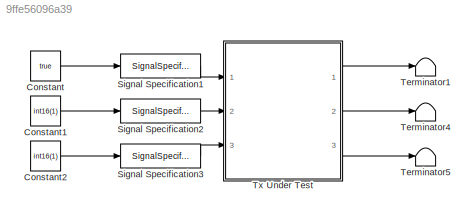
MODEL slx_9ffe56096a39
KIND model
CONFIG AbsTol = auto
CONFIG EnableMultiTasking = off
CONFIG FixedStep = auto
CONFIG InitFcn = numHeaderBits = 16;\n%numPreambleBits = 250;\nAGCBarkerSymbols = 160+28;\nEQTrainingSymbols = 250;\nCRCGeneratorLag = 34; % CRCLen + 2\n\n%% AGC Preamble\nB13bipolar = [0 0 0 0 0 2 2 0 0 2 0 2];\nrep = [B13bipolar, B13bipolar(1:4)];\nAGCBarker = repmat(rep,1,10);\n% Second preamble part\nB11bipolar = [0 0 0 2 2 2 0 2  2 0 2];\nTimingBarker = [B11bipolar,B11bipolar,B11bipolar,B11bipolar(1:6)];\nPreambleBarkersI...<+727ch>
CONFIG MaxStep = auto
CONFIG MinStep = auto
CONFIG RelTol = 1e-3
CONFIG SampleTimeConstraint = Unconstrained
CONFIG Solver = FixedStepDiscrete
CONFIG SolverName = FixedStepDiscrete
CONFIG StartTime = 0.0
CONFIG StopTime = 10
BLOCK [Constant] Constant
  SampleTime = -1
  Value = true
BLOCK [Constant] Constant1
  SampleTime = -1
  Value = int16(1)
BLOCK [Constant] Constant2
  SampleTime = -1
  Value = int16(1)
BLOCK [SignalSpecification] Signal Specification1
  OutDataTypeStr = boolean
  SampleTime = 1e-6
BLOCK [SignalSpecification] Signal Specification2
  OutDataTypeStr = int16
  SampleTime = 1e-6
BLOCK [SignalSpecification] Signal Specification3
  OutDataTypeStr = int16
  SampleTime = 1e-6
BLOCK [Terminator] Terminator1
BLOCK [Terminator] Terminator4
BLOCK [Terminator] Terminator5
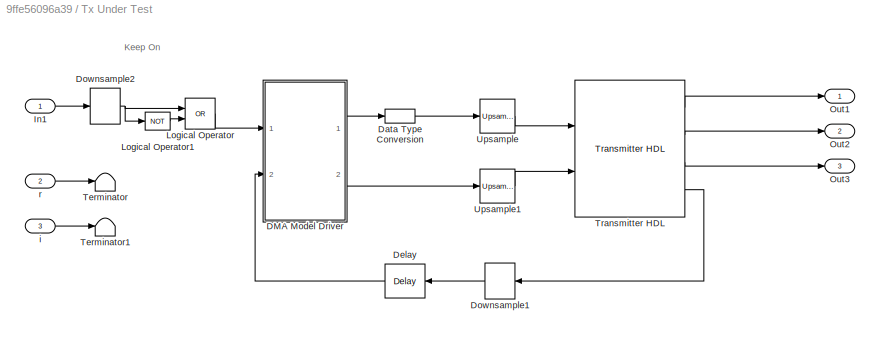
BLOCK [SubSystem] Tx Under Test
  Ports = [3, 3]
  RequestExecContextInheritance = off
  TreatAsAtomicUnit = on
  Variant = off
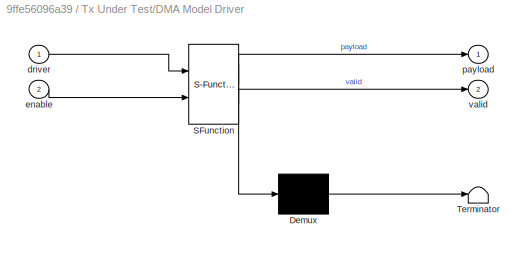
BLOCK [SubSystem] Tx Under Test/DMA Model Driver
  ErrorFcn = Stateflow.Translate.translate
  PermitHierarchicalResolution = ExplicitOnly
  Ports = [2, 2]
  RequestExecContextInheritance = off
  SFBlockType = MATLAB Function
  TreatAsAtomicUnit = on
  Variant = off
BLOCK [Demux] Tx Under Test/DMA Model Driver/ Demux 
  Outputs = 1
  Ports = [1, 1]
BLOCK [S-Function] Tx Under Test/DMA Model Driver/ SFunction 
  EnableBusSupport = on
  FunctionName = sf_sfun
  PortCounts = [2 3]
  Ports = [2, 3]
  SFcnIsStateOwnerBlock = off
  SFunctionDeploymentMode = off
  Tag = Stateflow S-Function Transmitter 6
BLOCK [Terminator] Tx Under Test/DMA Model Driver/ Terminator 
BLOCK [Inport] Tx Under Test/DMA Model Driver/driver
  IconDisplay = Port number
BLOCK [Inport] Tx Under Test/DMA Model Driver/enable
  IconDisplay = Port number
  Port = 2
BLOCK [Outport] Tx Under Test/DMA Model Driver/payload
  IconDisplay = Port number
BLOCK [Outport] Tx Under Test/DMA Model Driver/valid
  IconDisplay = Port number
  Port = 2
BLOCK [DataTypeConversion] Tx Under Test/Data Type Conversion
  OutDataTypeStr = fixdt(0,64,0)
  RndMeth = Floor
  SaturateOnIntegerOverflow = off
BLOCK [Delay] Tx Under Test/Delay
  DelayLength = 1
  InputPortMap = u0
  Ports = [1, 1]
BLOCK [DownSample] Tx Under Test/Downsample1
  InputProcessing = Elements as channels (sample based)
  N = 4
  RateOptions = Allow multirate processing
BLOCK [DownSample] Tx Under Test/Downsample2
  InputProcessing = Elements as channels (sample based)
  N = 4
  RateOptions = Allow multirate processing
BLOCK [Inport] Tx Under Test/In1
  IconDisplay = Port number
BLOCK [Logic] Tx Under Test/Logical Operator
  AllPortsSameDT = off
  Operator = OR
  OutDataTypeStr = boolean
  Ports = [2, 1]
BLOCK [Logic] Tx Under Test/Logical Operator1
  AllPortsSameDT = off
  Operator = NOT
  OutDataTypeStr = boolean
  Ports = [1, 1]
BLOCK [Outport] Tx Under Test/Out1
  IconDisplay = Port number
BLOCK [Outport] Tx Under Test/Out2
  IconDisplay = Port number
  Port = 2
BLOCK [Outport] Tx Under Test/Out3
  IconDisplay = Port number
  Port = 3
BLOCK [Terminator] Tx Under Test/Terminator
BLOCK [Terminator] Tx Under Test/Terminator1
BLOCK [Reference] Tx Under Test/Transmitter HDL  REF=RxTxFixedPointLibrary/Transmitter HDL
  Ports = [2, 4]
  SourceBlock = RxTxFixedPointLibrary/Transmitter HDL
BLOCK [Reference] Tx Under Test/Upsample  REF=dspsigops/Upsample
  Ports = [1, 1]
  SourceBlock = dspsigops/Upsample
  SourceProductBaseCode = DS
  SourceProductName = DSP System Toolbox
  SourceType = Upsample
  UserDataPersistent = on
BLOCK [Reference] Tx Under Test/Upsample1  REF=dspsigops/Upsample
  Ports = [1, 1]
  SourceBlock = dspsigops/Upsample
  SourceProductBaseCode = DS
  SourceProductName = DSP System Toolbox
  SourceType = Upsample
  UserDataPersistent = on
BLOCK [Inport] Tx Under Test/i
  IconDisplay = Port number
  Port = 3
BLOCK [Inport] Tx Under Test/r 
  IconDisplay = Port number
  Port = 2
ANNOTATION Tx Under Test: Keep On
LINE Constant1:1 -> Signal Specification2:1
LINE Constant2:1 -> Signal Specification3:1
LINE Constant:1 -> Signal Specification1:1
LINE Signal Specification1:1 -> Tx Under Test:1
LINE Signal Specification2:1 -> Tx Under Test:2
LINE Signal Specification3:1 -> Tx Under Test:3
LINE Tx Under Test/DMA Model Driver:1 -> Tx Under Test/Data Type Conversion:1
LINE Tx Under Test/DMA Model Driver:2 -> Tx Under Test/Upsample1:1
LINE Tx Under Test/Data Type Conversion:1 -> Tx Under Test/Upsample:1
LINE Tx Under Test/Delay:1 -> Tx Under Test/DMA Model Driver:2
LINE Tx Under Test/Downsample1:1 -> Tx Under Test/Delay:1
NET Tx Under Test/Downsample2:1 -> Tx Under Test/Logical Operator1:1, Tx Under Test/Logical Operator:1
LINE Tx Under Test/In1:1 -> Tx Under Test/Downsample2:1
LINE Tx Under Test/Logical Operator1:1 -> Tx Under Test/Logical Operator:2
LINE Tx Under Test/Logical Operator:1 -> Tx Under Test/DMA Model Driver:1
LINE Tx Under Test/Transmitter HDL:1 -> Tx Under Test/Out1:1
LINE Tx Under Test/Transmitter HDL:2 -> Tx Under Test/Out2:1
LINE Tx Under Test/Transmitter HDL:3 -> Tx Under Test/Out3:1
LINE Tx Under Test/Transmitter HDL:4 -> Tx Under Test/Downsample1:1
LINE Tx Under Test/Upsample1:1 -> Tx Under Test/Transmitter HDL:2
LINE Tx Under Test/Upsample:1 -> Tx Under Test/Transmitter HDL:1
LINE Tx Under Test/i:1 -> Tx Under Test/Terminator1:1
LINE Tx Under Test/r :1 -> Tx Under Test/Terminator:1
LINE Tx Under Test:1 -> Terminator1:1
LINE Tx Under Test:2 -> Terminator4:1
LINE Tx Under Test:3 -> Terminator5:1
note: NET lines group one-source signal fan-out (src -> all destinations, sorted); 1:1 wires keep LINE
CHART Tx Under Test/DMA Model
Driver states=1 transitions=1
  STATE_LABEL 'eML_blk_kernel()'
  STATE_LABEL 'SCRIPT:\nfunction [payload,valid] = fcn(driver, enable)\n%#codegen\n\npersistent indx mode\n\npSize = fi(200,0,64,0); % Size in bytes (Must be multiple of 32 bits) cannot exceed uint16 max\nmask = uint16(sum(2.^(0:15)));\n\nif isempty(indx)\n    indx = pSize;\n    mode = int8(0);\nend\n\n% % Randomly dont transmit new data\n% if enable && mode == 0\n%    enable = randn>1; \n% end\n\nif enable && driver\n    valid = t...<+867ch>'
